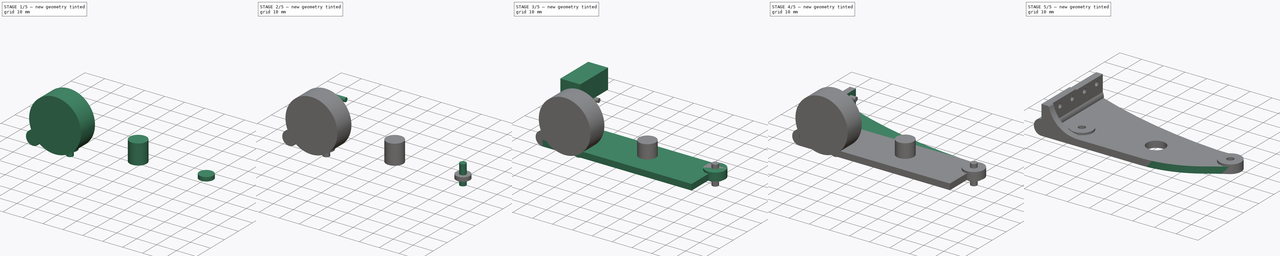
[diagram: build sequence overview — one tinted view per stage of 5, left to right]
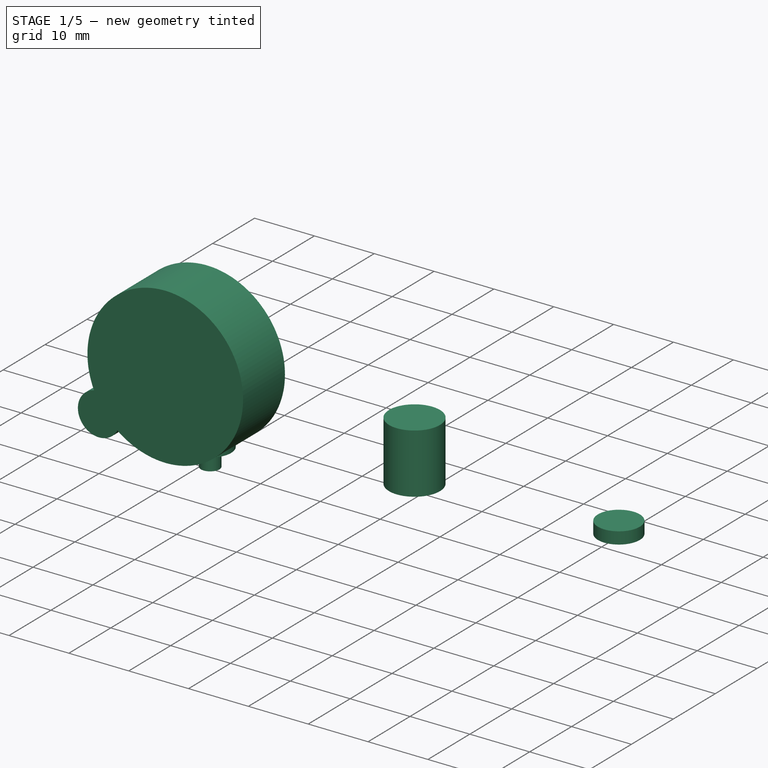
[diagram: stage 1 of 5 — iso view after this stage's code; geometry added in this stage tinted green]
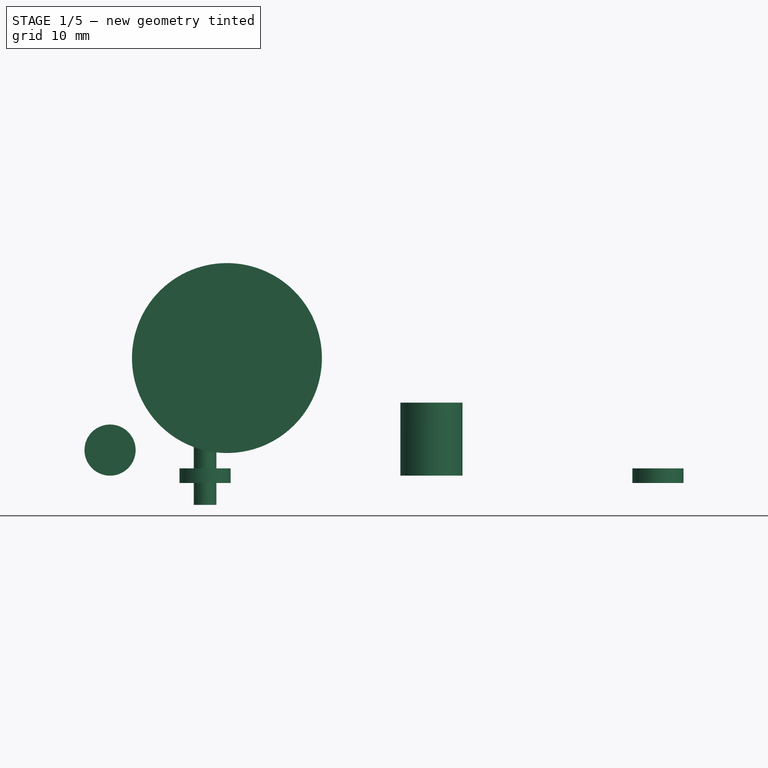
[diagram: stage 1 of 5 — front view after this stage's code; geometry added in this stage tinted green]
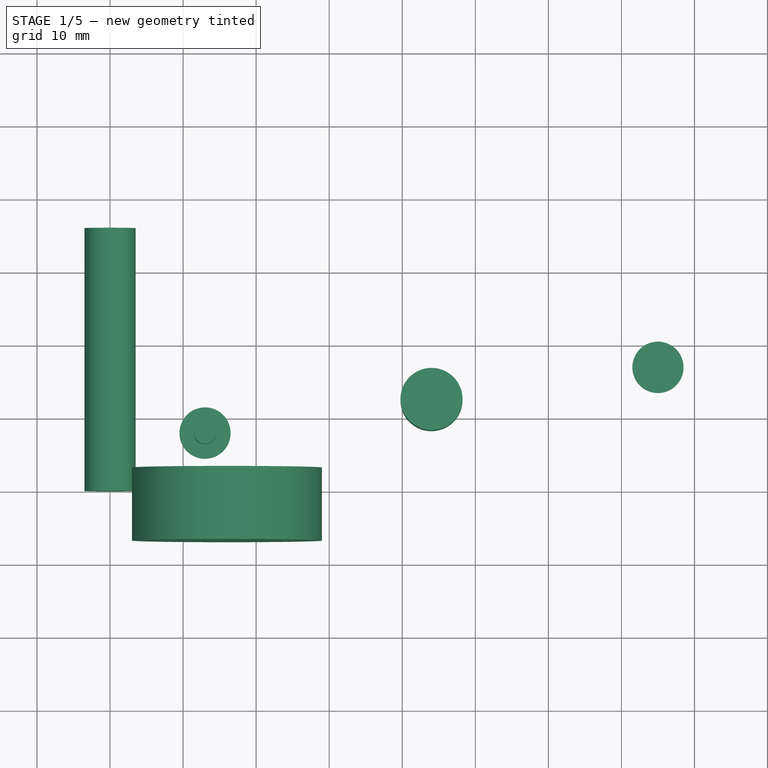
[diagram: stage 1 of 5 — top view after this stage's code; geometry added in this stage tinted green]
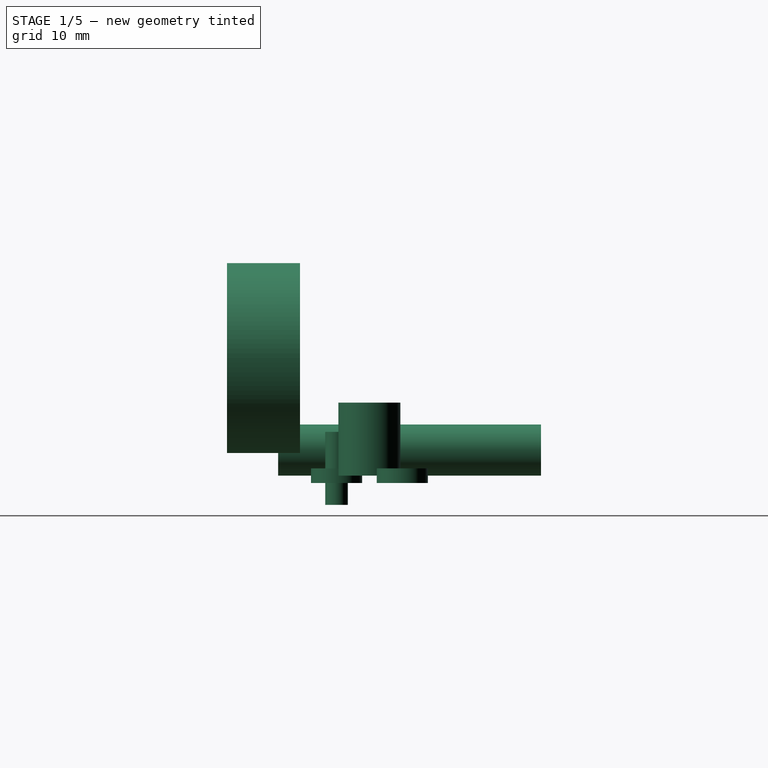
[diagram: stage 1 of 5 — right view after this stage's code; geometry added in this stage tinted green]
FCSTD DOCUMENT  (FreeCAD 0.14R2935 (Git))
Label: elbow_frame
License: CC-BY 3.0
LicenseURL: http://creativecommons.org/licenses/by/3.0/
objects: Part::Cylinder×14, Part::MultiFuse×7, Part::Box×3, Sketcher::SketchObject×3, Part::Extrusion×3, Part::Cut×3, Part::Fillet×1
note: 34 computed .brp shape members not serialized (recipe doc carries the construction recipe); baked Part::Feature solids carry a one-line shape summary decoded from their .brp

FEATURE [Part::Cylinder] Cylinder010
  Angle = 360
  Height = 10
  Placement = pos=(13,8,-4) rot=(0,0,1;0rad)
  Radius = 1.55
FEATURE [Part::Cylinder] Cylinder011
  Angle = 360
  Height = 10
  Placement = pos=(16,3,16.1) rot=(1,0,0;1.5708rad)
  Radius = 13
FEATURE [Part::Cylinder] Cylinder014
  Angle = 360
  Height = 2
  Placement = pos=(75,17,-1) rot=(0,0,1;0rad)
  Radius = 3.5
FEATURE [Part::Cylinder] Cylinder015
  Angle = 360
  Height = 2
  Placement = pos=(13,8,-1) rot=(0,0,1;0rad)
  Radius = 3.5
FEATURE [Part::Cylinder] Cylinder016
  Angle = 360
  Height = 10
  Placement = pos=(44,12.5,0) rot=(0,0,1;0rad)
  Radius = 4.25
FEATURE [Part::Cylinder] Cylinder
  Angle = 360
  Height = 36
  Placement = pos=(0,36,3.5) rot=(1,0,0;1.5708rad)
  Radius = 3.5
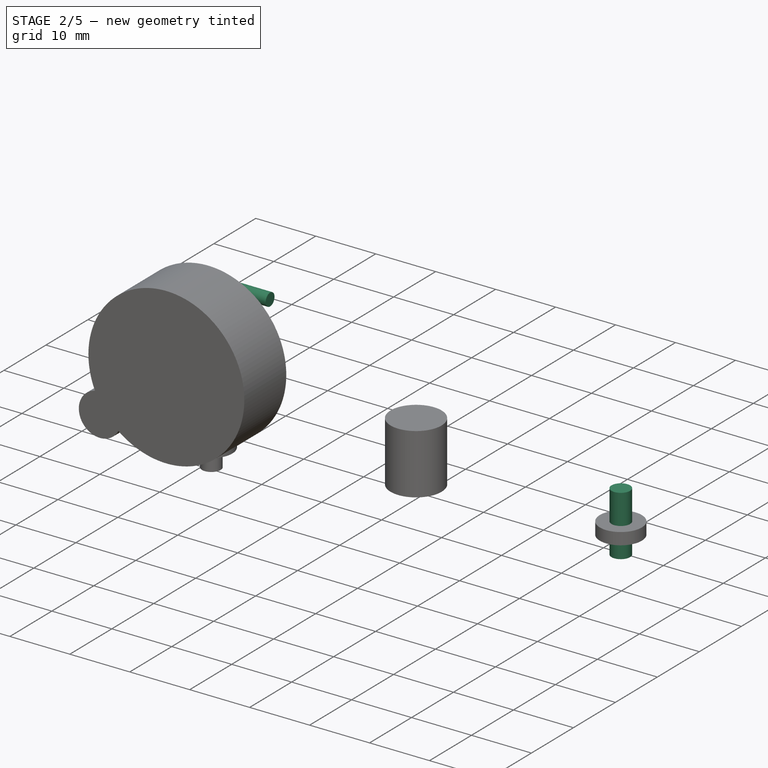
[diagram: stage 2 of 5 — iso view after this stage's code; geometry added in this stage tinted green]
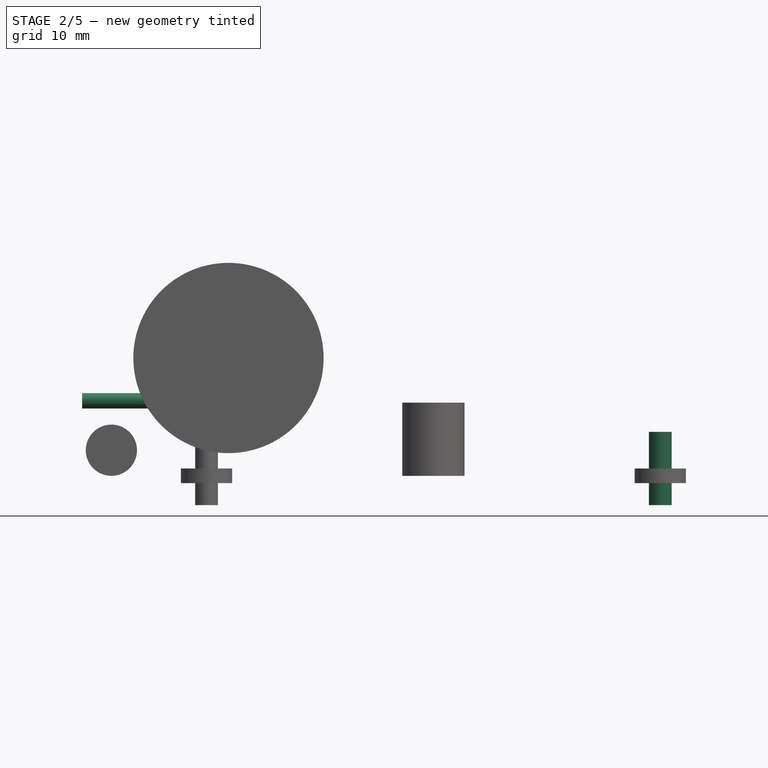
[diagram: stage 2 of 5 — front view after this stage's code; geometry added in this stage tinted green]
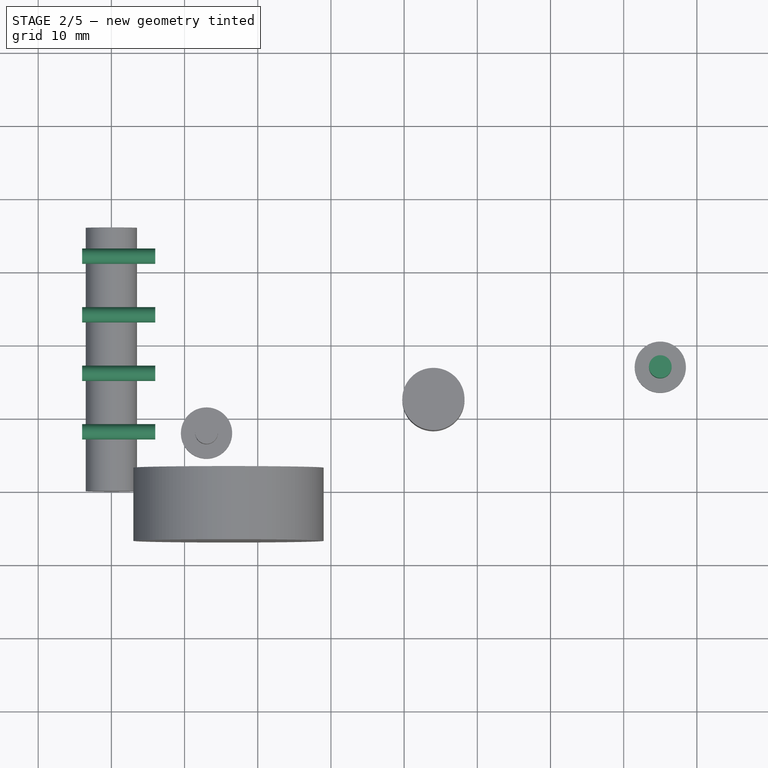
[diagram: stage 2 of 5 — top view after this stage's code; geometry added in this stage tinted green]
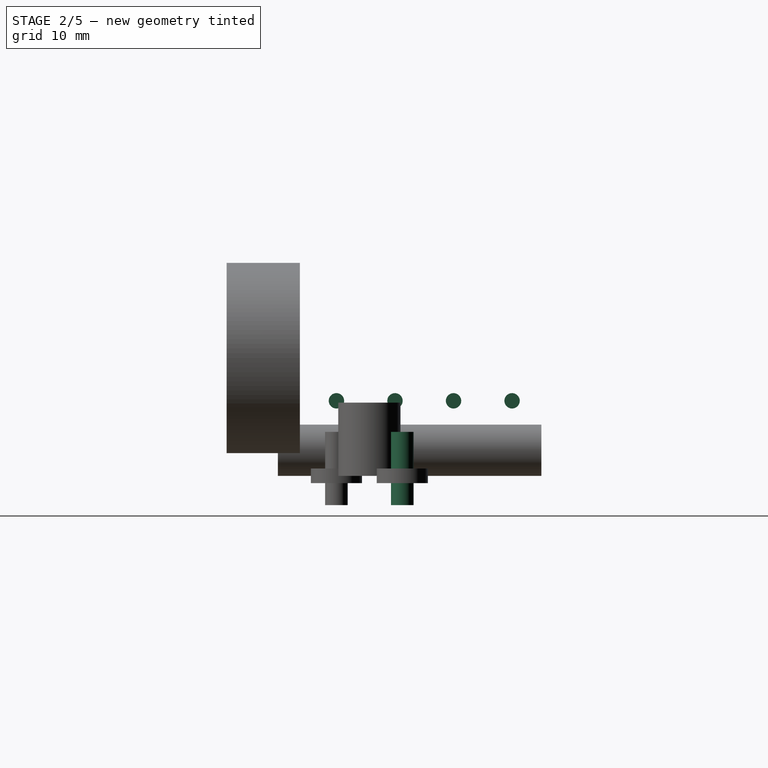
[diagram: stage 2 of 5 — right view after this stage's code; geometry added in this stage tinted green]
FEATURE [Part::Cylinder] Cylinder005
  Angle = 360
  Height = 10
  Placement = pos=(-4,16,10.25) rot=(0,1,0;1.5708rad)
  Radius = 1.05
FEATURE [Part::Cylinder] Cylinder006
  Angle = 360
  Height = 10
  Placement = pos=(-4,24,10.25) rot=(0,1,0;1.5708rad)
  Radius = 1.05
FEATURE [Part::Cylinder] Cylinder007
  Angle = 360
  Height = 10
  Placement = pos=(-4,32,10.25) rot=(0,1,0;1.5708rad)
  Radius = 1.05
FEATURE [Part::Cylinder] Cylinder008
  Angle = 360
  Height = 10
  Placement = pos=(-4,8,10.25) rot=(0,1,0;1.5708rad)
  Radius = 1.05
FEATURE [Part::Cylinder] Cylinder009
  Angle = 360
  Height = 10
  Placement = pos=(75,17,-4) rot=(0,0,1;0rad)
  Radius = 1.55
FEATURE [Part::MultiFuse] Fusion005
  Shapes = -> [Cylinder014,Cylinder015,Cylinder011,Cylinder009,Cylinder010]
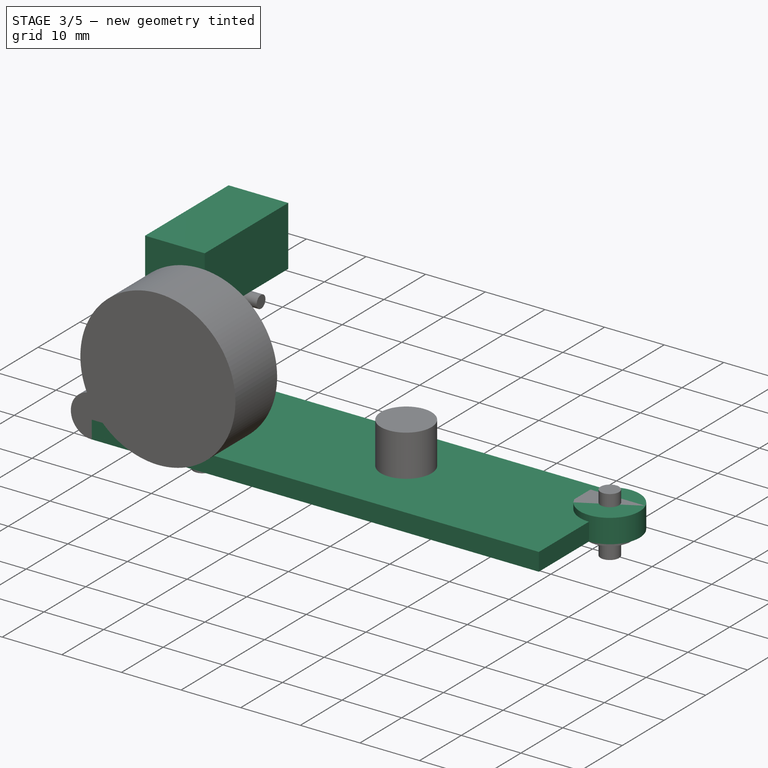
[diagram: stage 3 of 5 — iso view after this stage's code; geometry added in this stage tinted green]
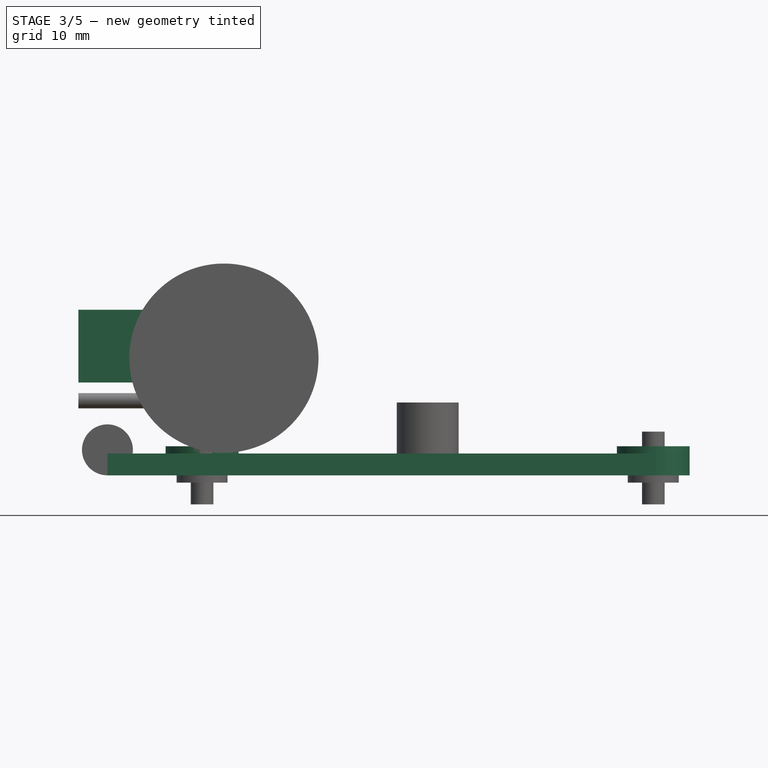
[diagram: stage 3 of 5 — front view after this stage's code; geometry added in this stage tinted green]
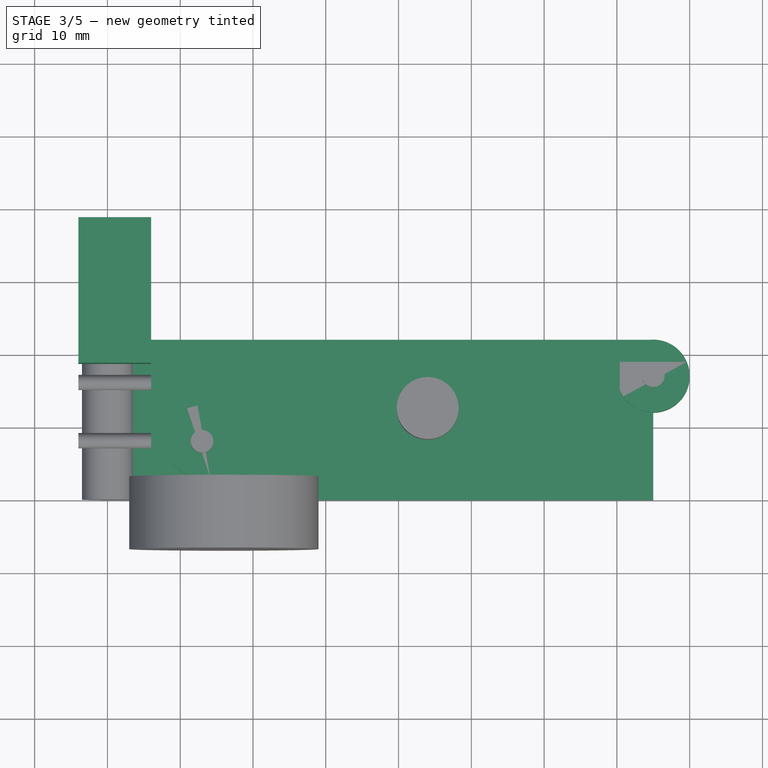
[diagram: stage 3 of 5 — top view after this stage's code; geometry added in this stage tinted green]
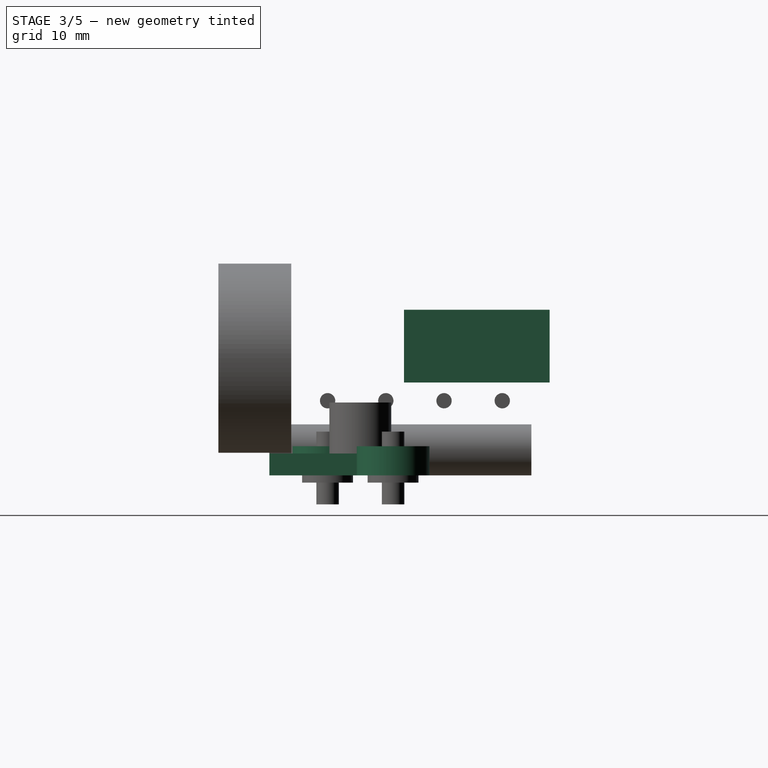
[diagram: stage 3 of 5 — right view after this stage's code; geometry added in this stage tinted green]
FEATURE [Part::Box] Box  label="Cube"
  Height = 3
  Length = 75
  Width = 22
FEATURE [Part::Cylinder] Cylinder004
  Angle = 360
  Height = 3
  Placement = pos=(75,17,0) rot=(0,0,1;0rad)
  Radius = 5
FEATURE [Part::Box] Box002  label="Cube002"
  Height = 10
  Length = 10
  Placement = pos=(-4,18.5,12.75) rot=(0,0,1;0rad)
  Width = 20
FEATURE [Part::MultiFuse] Fusion002
  Shapes = -> [Cylinder005,Cylinder007,Cylinder006,Cylinder008]
FEATURE [Part::Cylinder] Cylinder012
  Angle = 360
  Height = 1
  Placement = pos=(75,17,3) rot=(0,0,1;0rad)
  Radius = 5
FEATURE [Part::Cylinder] Cylinder013
  Angle = 360
  Height = 1
  Placement = pos=(13,8,3) rot=(0,0,1;0rad)
  Radius = 5
FEATURE [Part::MultiFuse] Fusion
  Shapes = -> [Fusion002,Cylinder016,Fusion005]
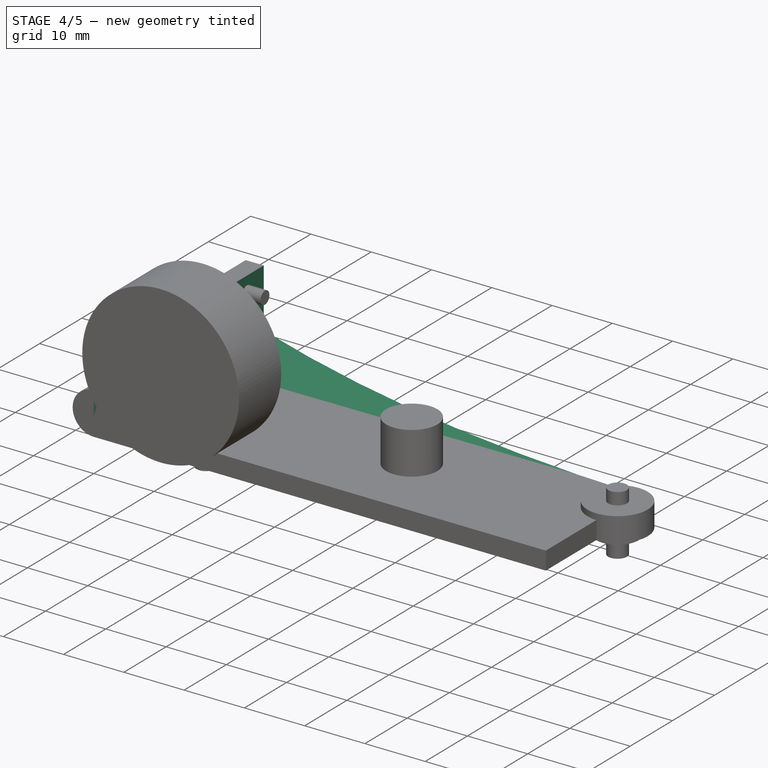
[diagram: stage 4 of 5 — iso view after this stage's code; geometry added in this stage tinted green]
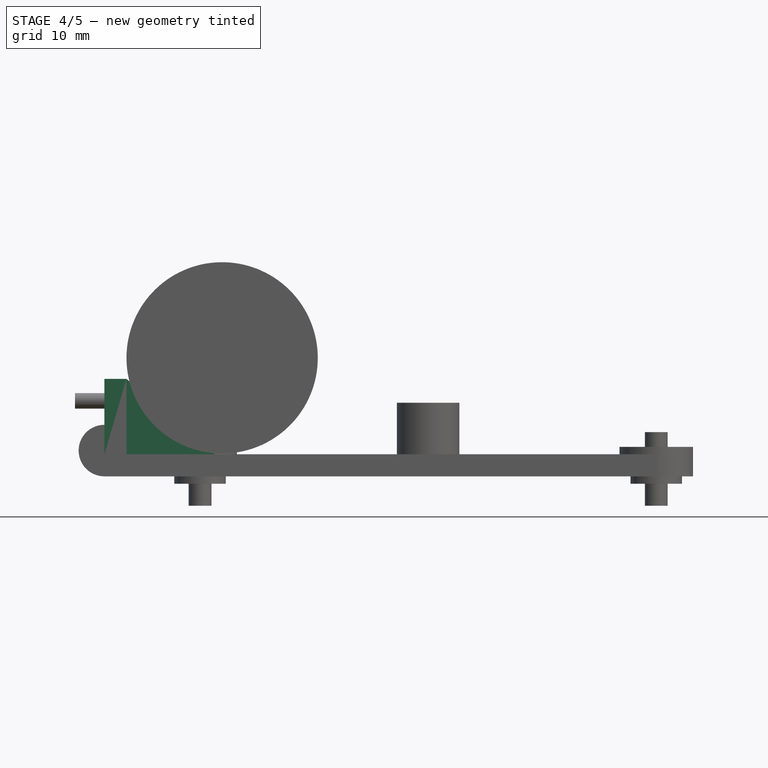
[diagram: stage 4 of 5 — front view after this stage's code; geometry added in this stage tinted green]
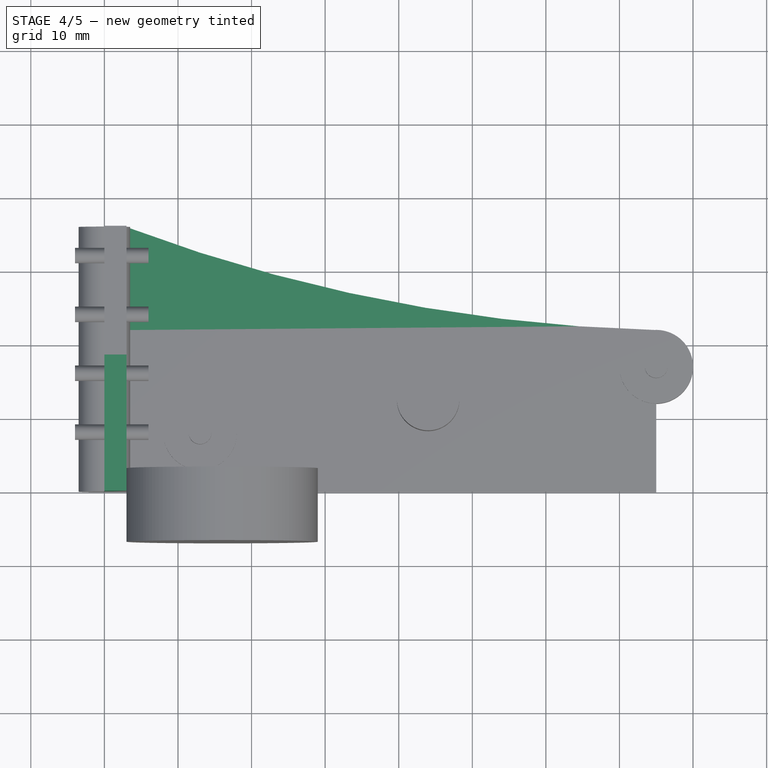
[diagram: stage 4 of 5 — top view after this stage's code; geometry added in this stage tinted green]
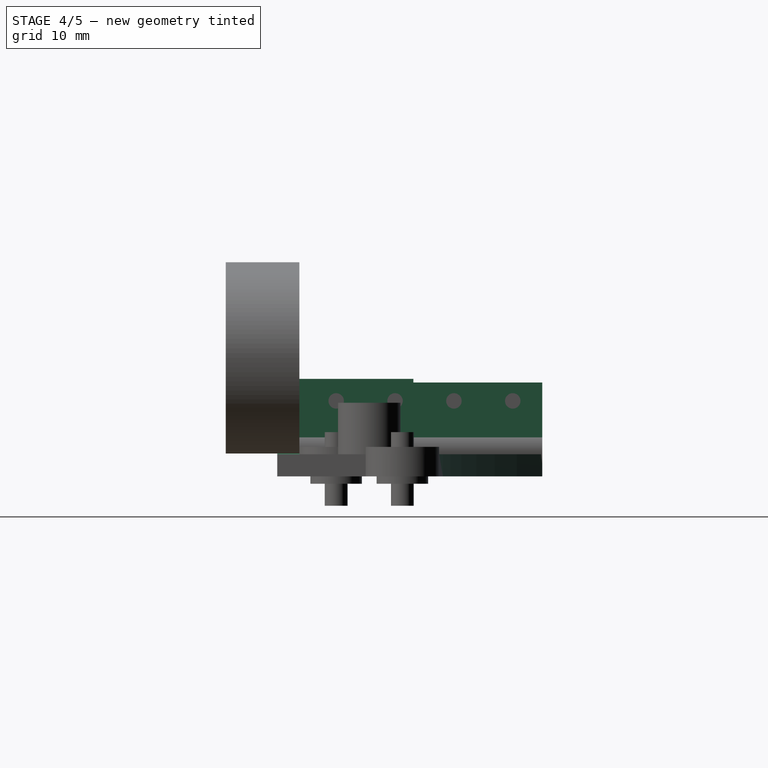
[diagram: stage 4 of 5 — right view after this stage's code; geometry added in this stage tinted green]
FEATURE [Part::Box] Box001  label="Cube001"
  Height = 13.25
  Length = 3
  Width = 36
FEATURE [Sketcher::SketchObject] Sketch
  Placement = pos=(0,0,0) rot=(1,0,0;3.14159rad)
  Support = -> Box [Face5]
  sketch-geometry (6):
    g0: ArcOfCircle CenterX=80.4038 CenterY=-241.934 CenterZ=0 NormalX=0 NormalY=0 NormalZ=1 Radius=220 StartAngle=1.59536 EndAngle=1.93033
    g1: GeomPoint [constr] X=3 Y=-22 Z=0
    g2: GeomPoint [constr] X=3 Y=-36 Z=0
    g3: GeomPoint [constr] X=75 Y=-22 Z=0
    g4: LineSegment StartX=3 StartY=-36 StartZ=0 EndX=3 EndY=-22 EndZ=0
    g5: LineSegment StartX=3 StartY=-22 StartZ=0 EndX=75 EndY=-22 EndZ=0
  constraints (15):
    c: DistanceX(g1) = 3
    c: DistanceY(g1) = -22
    c: DistanceX(g2) = 3
    c: DistanceY(g2,g1) = 14
    c: DistanceY(g3) = -22
    c: DistanceX(g3) = 75
    c: Coincident(g4,g2)
    c: Coincident(g4,g1)
    c: Coincident(g5,g1)
    c: Coincident(g5,g3)
    c: PointOnObject(g2,g0)
    c: PointOnObject(g3,g0)
    c: PointOnObject(g0,g5)
    c: PointOnObject(g0,g4)
    c: Radius(g0) = 220
FEATURE [Part::Extrusion] Extrude
  Base = -> Sketch
  Dir = (0,0,3)
  Solid = true
FEATURE [Part::MultiFuse] Fusion001
  Shapes = -> [Cylinder004,Extrude,Box001,Box]
FEATURE [Part::Cut] Cut
  Base = -> Fusion001
  Tool = -> Box002
FEATURE [Sketcher::SketchObject] Sketch001
  ExternalGeometry = -> [Cut]
  Placement = pos=(0,0,0) rot=(1,0,0;1.5708rad)
  Support = -> Cut [Face5]
  sketch-geometry (3):
    g0: LineSegment StartX=3 StartY=3 StartZ=0 EndX=3 EndY=13.25 EndZ=0
    g1: LineSegment StartX=3 StartY=3 StartZ=0 EndX=15 EndY=3 EndZ=0
    g2: LineSegment StartX=3 StartY=13.25 StartZ=0 EndX=15 EndY=3 EndZ=0
  constraints (7):
    c: Coincident(g0,g-4)
    c: Coincident(g0,g-3)
    c: Horizontal(g1)
    c: DistanceX(g1) = 15
    c: Coincident(g2,g0)
    c: Coincident(g2,g1)
    c: Coincident(g1,g0)
FEATURE [Part::Extrusion] Extrude001
  Base = -> Sketch001
  Dir = (0,3,0)
  Solid = true
FEATURE [Part::MultiFuse] Fusion004
  Shapes = -> [Cut,Extrude001]
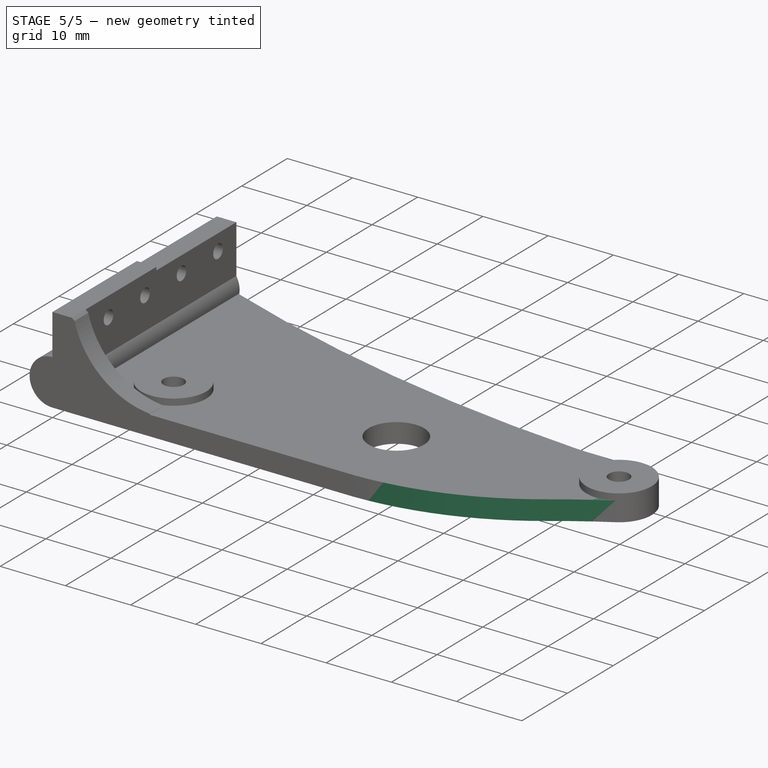
[diagram: stage 5 of 5 — iso view after this stage's code; geometry added in this stage tinted green]
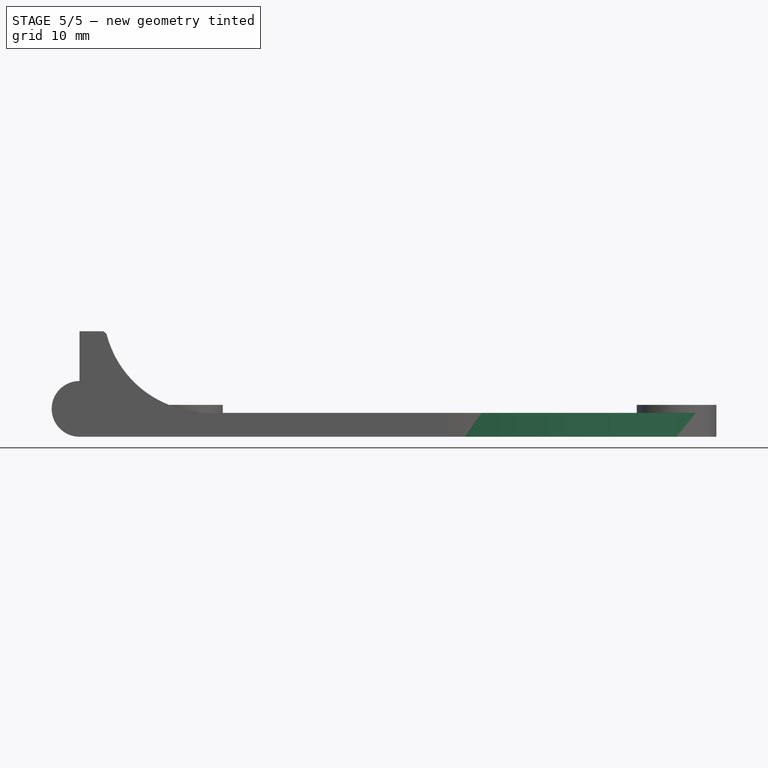
[diagram: stage 5 of 5 — front view after this stage's code; geometry added in this stage tinted green]
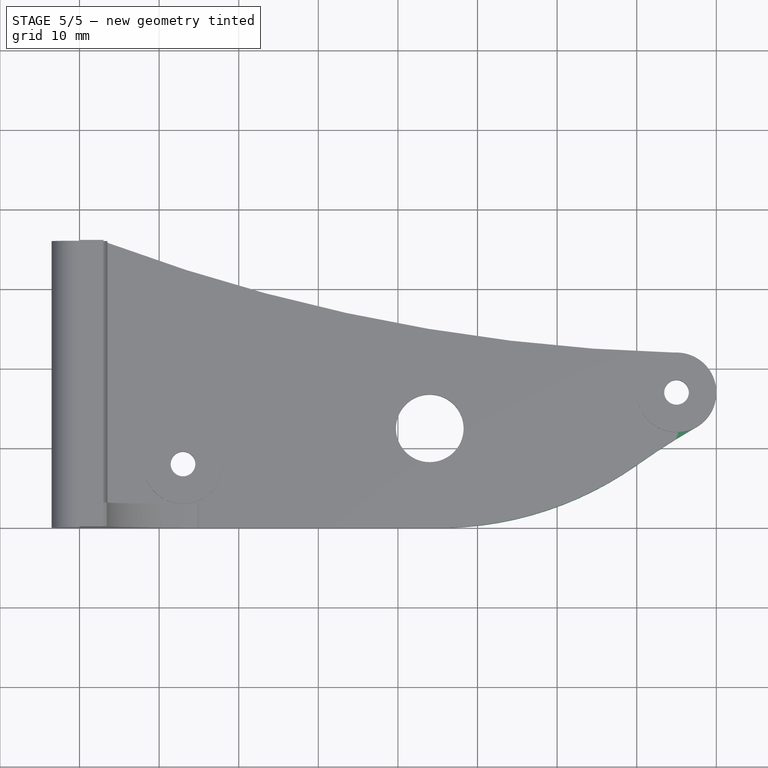
[diagram: stage 5 of 5 — top view after this stage's code; geometry added in this stage tinted green]
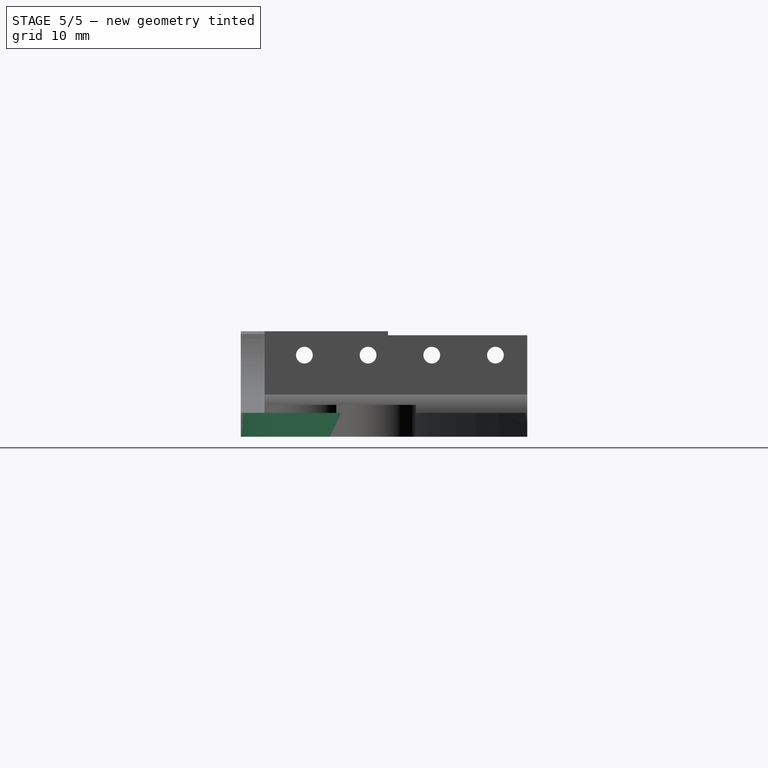
[diagram: stage 5 of 5 — right view after this stage's code; geometry added in this stage tinted green]
FEATURE [Sketcher::SketchObject] Sketch002
  ExternalGeometry = -> [Cut]
  Placement = pos=(0,0,0) rot=(1,0,0;3.14159rad)
  Support = -> Cut [Face20]
  sketch-geometry (4):
    g0: GeomPoint [constr] X=44 Y=0 Z=0
    g1: ArcOfCircle CenterX=45.1267 CenterY=-43.1311 CenterZ=0 NormalX=0 NormalY=0 NormalZ=1 Radius=43.1458 StartAngle=0.806013 EndAngle=1.59691
    g2: LineSegment StartX=75 StartY=-12 StartZ=0 EndX=75 EndY=0 EndZ=0
    g3: LineSegment StartX=75 StartY=0 StartZ=0 EndX=44 EndY=0 EndZ=0
  constraints (9):
    c: PointOnObject(g0,g-3)
    c: DistanceX(g0) = 44
    c: Coincident(g1,g0)
    c: Coincident(g1,g-5)
    c: DistanceY(g1) = -43.1311
    c: Coincident(g2,g1)
    c: Coincident(g2,g-3)
    c: Coincident(g3,g2)
    c: Coincident(g3,g0)
FEATURE [Part::Extrusion] Extrude002
  Base = -> Sketch002
  Dir = (0,0,3)
  Solid = true
FEATURE [Part::Cut] Cut001
  Base = -> Fusion004
  Tool = -> Extrude002
FEATURE [Part::Fillet] Fillet
  Base = -> Cut001
  Edges = 1 edges r=85: [Edge52]
FEATURE [Part::MultiFuse] Fusion006
  Shapes = -> [Cylinder012,Cylinder013,Fillet]
FEATURE [Part::Cut] Cut002
  Base = -> Fusion006
  Tool = -> Fusion
FEATURE [Part::MultiFuse] Fusion007
  Shapes = -> [Cylinder,Cut002]
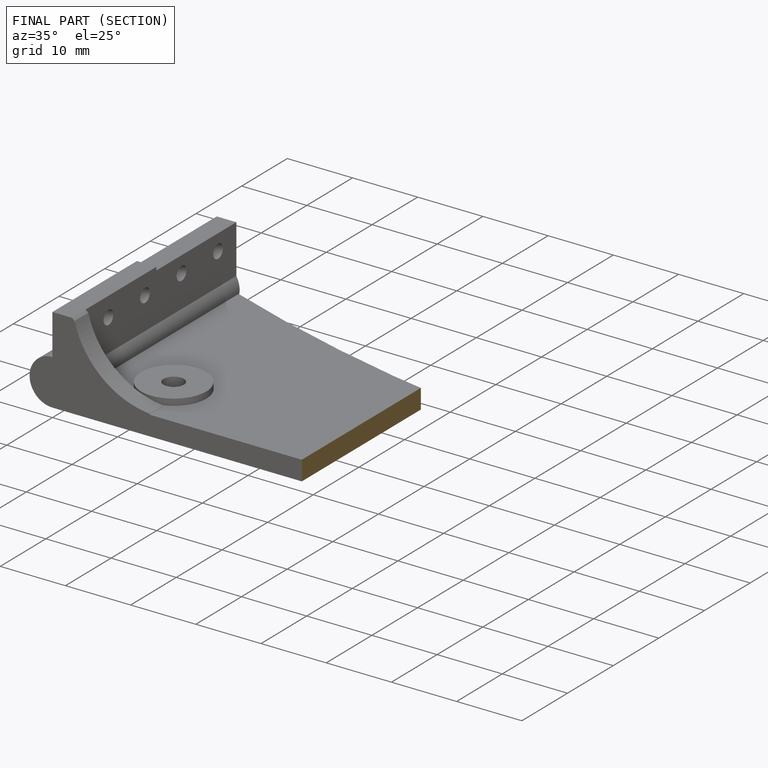
[diagram: finished part — half-section view (interior)]
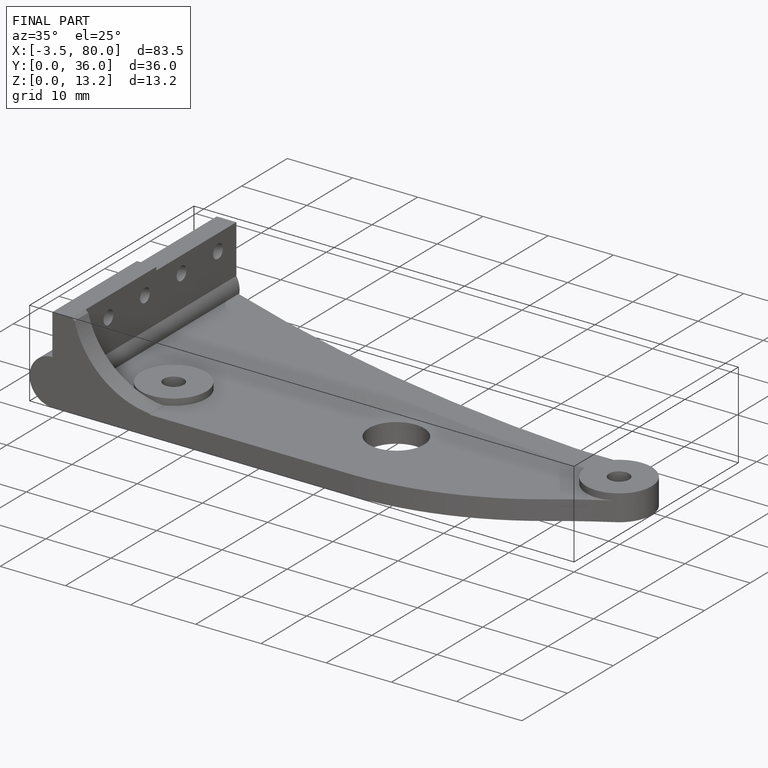
[diagram: finished part — iso view with bounding-box wireframe]
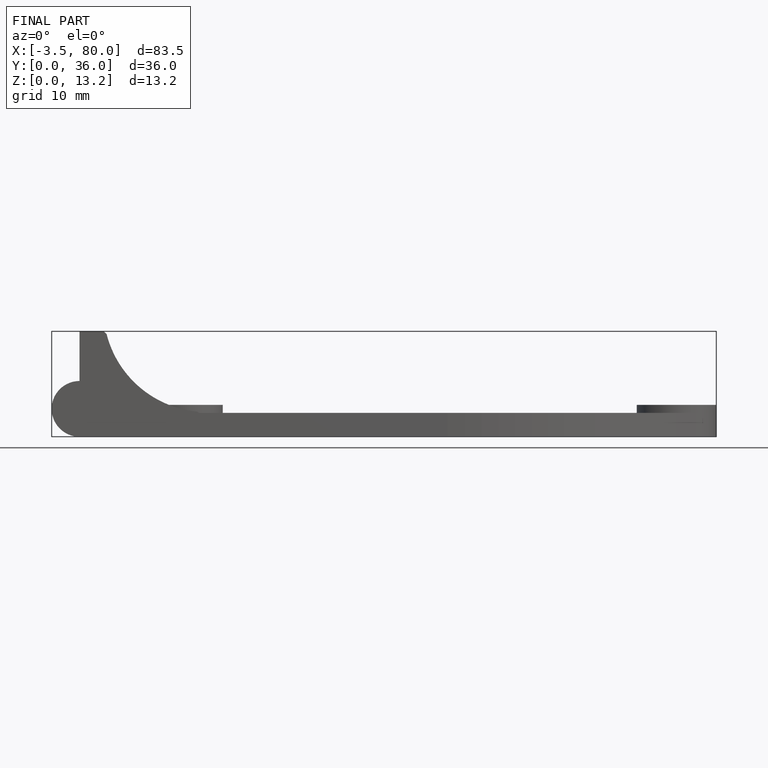
[diagram: finished part — front view with bounding-box wireframe]
